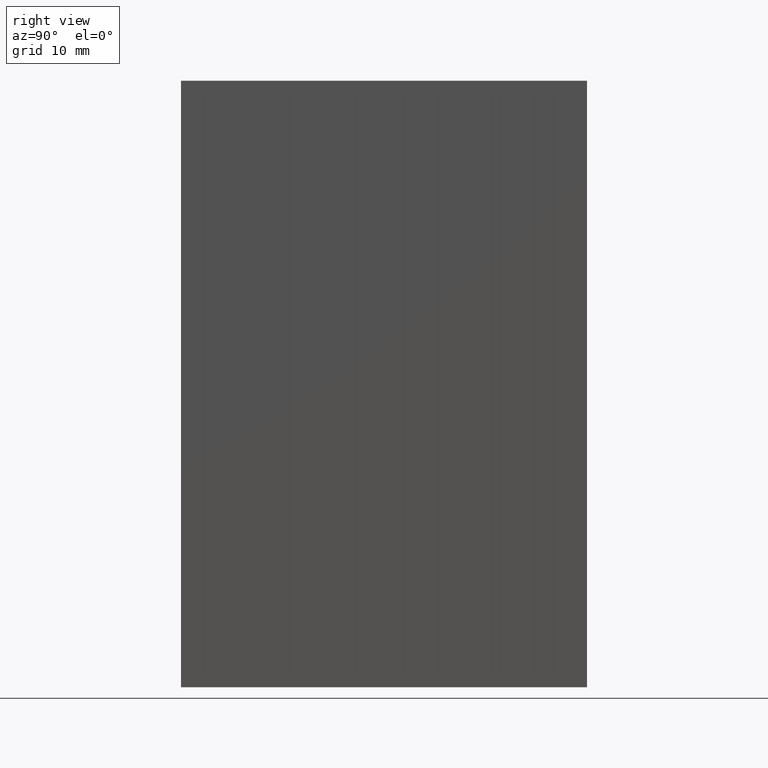
[diagram: clean part render]
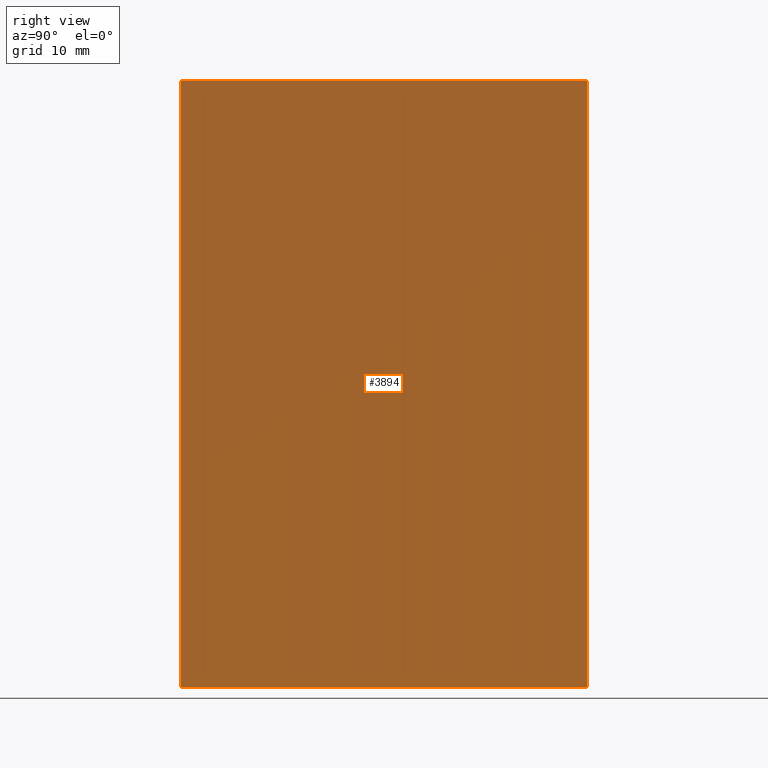
[diagram: same view with one face highlighted and labeled with its STEP entity id]
A machine part, right view. The second image highlights one B-rep face of the part: STEP entity #3894.
In plain terms, the highlighted planar face has unit normal (-0.998, 0.0639, 0).
Its self-contained STEP definition (entity closure, byte-faithful):
#195 = DIRECTION ( 'NONE',  ( 0.06386932928370199491, 0.9979582700578466525, -0.000000000000000000 ) ) ;
#391 = CARTESIAN_POINT ( 'NONE',  ( -0.2999999999999929945, -25.00000000000000000, 37.35000000000000142 ) ) ;
#527 = CARTESIAN_POINT ( 'NONE',  ( 2.899999999999997691, 25.00000000000000000, 37.35000000000000142 ) ) ;
#597 = EDGE_CURVE ( 'NONE', #13907, #6142, #16011, .T. ) ;
#969 = VECTOR ( 'NONE', #11786, 1000.000000000000000 ) ;
#1011 = EDGE_CURVE ( 'NONE', #6142, #4632, #4490, .T. ) ;
#1143 = VECTOR ( 'NONE', #1393, 1000.000000000000114 ) ;
#1184 = CARTESIAN_POINT ( 'NONE',  ( 2.899999999999997691, 25.00000000000000000, -37.35000000000000142 ) ) ;
#1393 = DIRECTION ( 'NONE',  ( 0.06386932928370199491, 0.9979582700578466525, -0.000000000000000000 ) ) ;
#3894 = ADVANCED_FACE ( 'NONE', ( #16384 ), #7020, .F. ) ;
#3895 = CARTESIAN_POINT ( 'NONE',  ( -0.2999999999999929945, -25.00000000000000000, 37.35000000000000142 ) ) ;
#4041 = CARTESIAN_POINT ( 'NONE',  ( 2.899999999999997691, 25.00000000000000000, 37.35000000000000142 ) ) ;
#4490 = LINE ( 'NONE', #1184, #1143 ) ;
#4632 = VERTEX_POINT ( 'NONE', #11467 ) ;
#6142 = VERTEX_POINT ( 'NONE', #9860 ) ;
#7020 = PLANE ( 'NONE',  #8773 ) ;
#7077 = DIRECTION ( 'NONE',  ( -0.9979582700578466525, 0.06386932928370199491, 0.000000000000000000 ) ) ;
#7417 = EDGE_LOOP ( 'NONE', ( #12159, #14517, #14246, #9787 ) ) ;
#8132 = DIRECTION ( 'NONE',  ( -0.06386932928370199491, -0.9979582700578466525, 0.000000000000000000 ) ) ;
#8192 = CARTESIAN_POINT ( 'NONE',  ( 2.899999999999997691, 25.00000000000000000, 37.35000000000000142 ) ) ;
#8720 = VERTEX_POINT ( 'NONE', #10952 ) ;
#8773 = AXIS2_PLACEMENT_3D ( 'NONE', #8192, #7077, #8132 ) ;
#9787 = ORIENTED_EDGE ( 'NONE', *, *, #597, .T. ) ;
#9860 = CARTESIAN_POINT ( 'NONE',  ( -0.2999999999999929945, -25.00000000000000000, -37.35000000000000142 ) ) ;
#9909 = EDGE_CURVE ( 'NONE', #8720, #4632, #15882, .T. ) ;
#10624 = LINE ( 'NONE', #4041, #11836 ) ;
#10952 = CARTESIAN_POINT ( 'NONE',  ( 2.899999999999997691, 25.00000000000000000, 37.35000000000000142 ) ) ;
#11467 = CARTESIAN_POINT ( 'NONE',  ( 2.899999999999997691, 25.00000000000000000, -37.35000000000000142 ) ) ;
#11786 = DIRECTION ( 'NONE',  ( -0.000000000000000000, -0.000000000000000000, -1.000000000000000000 ) ) ;
#11836 = VECTOR ( 'NONE', #195, 1000.000000000000114 ) ;
#11867 = DIRECTION ( 'NONE',  ( -0.000000000000000000, -0.000000000000000000, -1.000000000000000000 ) ) ;
#12159 = ORIENTED_EDGE ( 'NONE', *, *, #1011, .T. ) ;
#13907 = VERTEX_POINT ( 'NONE', #3895 ) ;
#14246 = ORIENTED_EDGE ( 'NONE', *, *, #14712, .F. ) ;
#14517 = ORIENTED_EDGE ( 'NONE', *, *, #9909, .F. ) ;
#14705 = VECTOR ( 'NONE', #11867, 1000.000000000000000 ) ;
#14712 = EDGE_CURVE ( 'NONE', #13907, #8720, #10624, .T. ) ;
#15882 = LINE ( 'NONE', #527, #14705 ) ;
#16011 = LINE ( 'NONE', #391, #969 ) ;
#16384 = FACE_OUTER_BOUND ( 'NONE', #7417, .T. ) ;